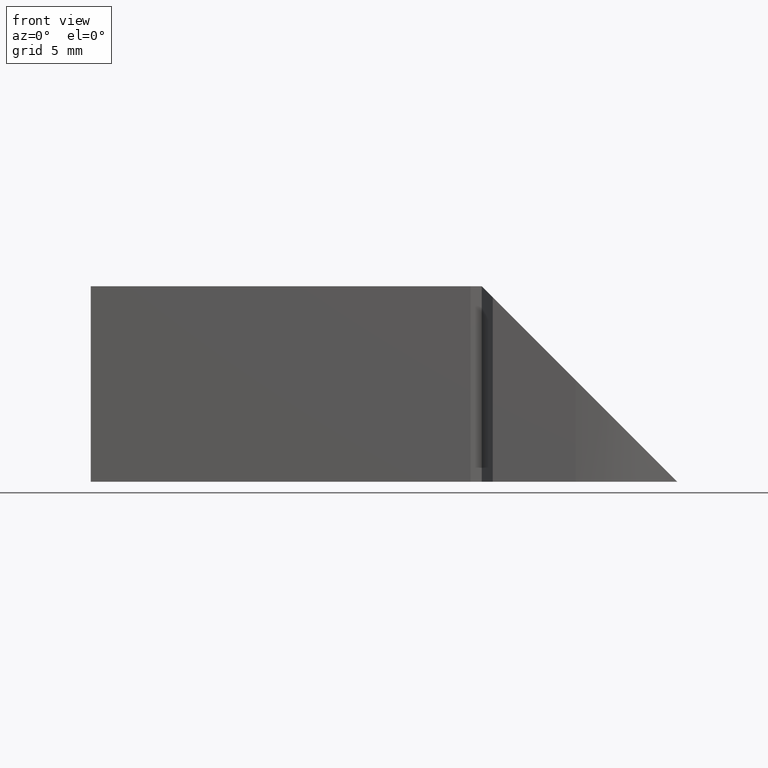
[diagram: clean part render]
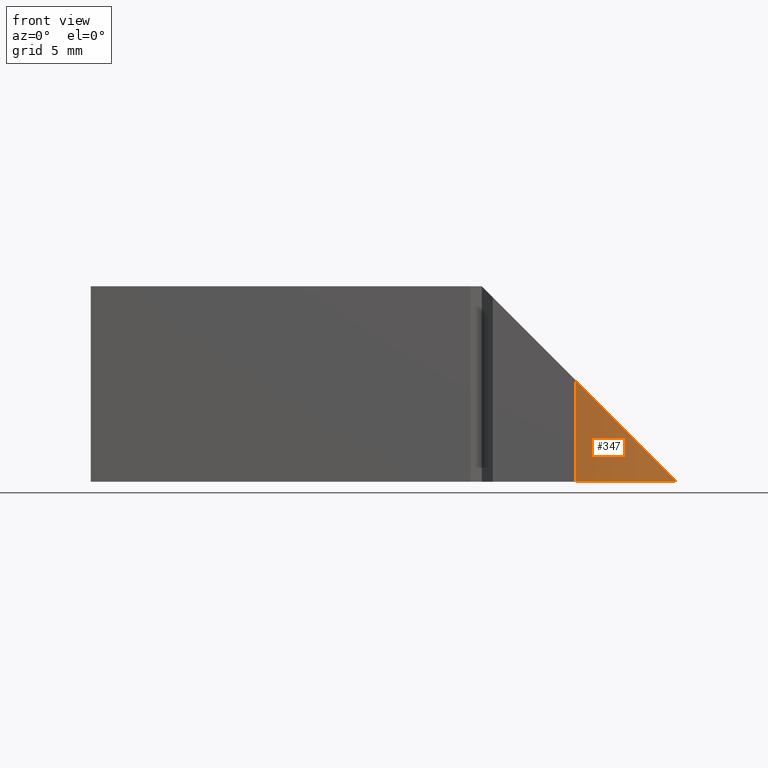
[diagram: same view with one face highlighted and labeled with its STEP entity id]
A machine part, front view. The second image highlights one B-rep face of the part: STEP entity #347.
In plain terms, the highlighted cylindrical surface (partial cylindrical patch) has radius 7.2 mm, axis along (0, -0, 1).
Its self-contained STEP definition (entity closure, byte-faithful):
#297=CARTESIAN_POINT('',(22.900000000001885,-9.999999999995776,-1.421085E-014));
#298=VERTEX_POINT('',#297);
#305=CARTESIAN_POINT('',(22.900000000001885,-9.999999999995776,5.199999999999434));
#306=VERTEX_POINT('',#305);
#307=CARTESIAN_POINT('',(22.900000000001885,-9.999999999995776,5.199999999999440));
#308=DIRECTION('',(0.0,0.0,-1.0));
#309=VECTOR('',#308,5.199999999999454);
#310=LINE('',#307,#309);
#311=EDGE_CURVE('',#306,#298,#310,.T.);
#323=CARTESIAN_POINT('',(22.900000000000592,-2.799999999995730,10.0));
#324=DIRECTION('',(2.198309E-029,-1.224647E-016,1.0));
#325=DIRECTION('',(1.0,1.795055E-013,0.0));
#326=AXIS2_PLACEMENT_3D('',#323,#324,#325);
#327=CYLINDRICAL_SURFACE('',#326,7.200000000000000);
#328=ORIENTED_EDGE('',*,*,#311,.T.);
#329=CARTESIAN_POINT('',(28.100000000001533,-7.779959839175107,0.0));
#330=VERTEX_POINT('',#329);
#331=CARTESIAN_POINT('',(22.900000000000592,-2.799999999995730,0.0));
#332=DIRECTION('',(2.198309E-029,-1.224647E-016,1.0));
#333=DIRECTION('',(1.0,1.795055E-013,0.0));
#334=AXIS2_PLACEMENT_3D('',#331,#332,#333);
#335=CIRCLE('',#334,7.200000000000000);
#336=EDGE_CURVE('',#298,#330,#335,.T.);
#337=ORIENTED_EDGE('',*,*,#336,.T.);
#338=CARTESIAN_POINT('',(22.900000000000595,-2.799999999995730,5.199999999999392));
#339=DIRECTION('',(0.707106781186508,1.268430E-013,0.707106781186587));
#340=DIRECTION('',(0.707106781186587,1.270162E-013,-0.707106781186508));
#341=AXIS2_PLACEMENT_3D('',#338,#339,#340);
#342=ELLIPSE('',#341,10.182337649085714,7.200000000000000);
#343=EDGE_CURVE('',#306,#330,#342,.T.);
#344=ORIENTED_EDGE('',*,*,#343,.F.);
#345=EDGE_LOOP('',(#328,#337,#344));
#346=FACE_OUTER_BOUND('',#345,.T.);
#347=ADVANCED_FACE('',(#346),#327,.T.);